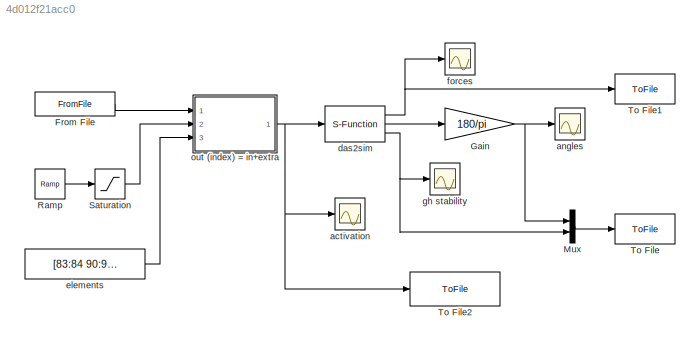
MODEL slx_4d012f21acc0
KIND model
CONFIG AbsTol = auto
CONFIG EnableMultiTasking = on
CONFIG FixedStep = Auto
CONFIG MaxStep = auto
CONFIG MinStep = auto
CONFIG RelTol = 1e-3
CONFIG SampleTimeConstraint = Unconstrained
CONFIG Solver = ode4
CONFIG SolverName = ode4
CONFIG StartTime = 0.0
CONFIG StopTime = 10
BLOCK [FromFile] From File
  FileName = initactmin.mat
  SampleTime = 0.001
BLOCK [Gain] Gain
  Gain = 180/pi
  OutDataTypeStr = Inherit: Inherit via internal rule
  ParamDataTypeStr = Inherit: Inherit via internal rule
  SaturateOnIntegerOverflow = off
BLOCK [Mux] Mux
  DisplayOption = bar
  Inputs = 2
  Ports = [2, 1]
BLOCK [Reference] Ramp  REF=simulink/Sources/Ramp
  Ports = [0, 1]
  SourceBlock = simulink/Sources/Ramp
  SourceProductBaseCode = SL
  SourceProductName = Simulink
  SourceType = Ramp
BLOCK [Saturate] Saturation
  InputPortMap = u0
  LowerLimit = 0
  Ports = [1, 1]
  UpperLimit = 1
BLOCK [ToFile] To File
  Decimation = 10
  Filename = output.mat
  MatrixName = output
  Ports = [1]
BLOCK [ToFile] To File1
  Decimation = 10
  Filename = forces.mat
  MatrixName = forces
  Ports = [1]
BLOCK [ToFile] To File2
  Decimation = 20
  Filename = activations.mat
  MatrixName = act
  Ports = [1]
BLOCK [Scope] activation
  Floating = off
  NumInputPorts = 1
  Ports = [1]
  ScopeSpecificationString = Simulink.scopes.TimeScopeBlockCfg('CurrentConfiguration', extmgr.ConfigurationSet(extmgr.Configuration('Core','General UI',true),extmgr.Configuration('Core','Source UI',true),extmgr.Configuration('Sources','WiredSimulink',true,'DataLoggingVariableName','ScopeData2','DataLoggingSaveFormat','StructureWithTime','DataLoggingDecimation','10','DataLoggingDecimateData',true,'DataLoggingLimitDataPoints',t...<+1682ch>
BLOCK [Scope] angles
  Floating = off
  NumInputPorts = 1
  Ports = [1]
  ScopeSpecificationString = Simulink.scopes.TimeScopeBlockCfg('CurrentConfiguration', extmgr.ConfigurationSet(extmgr.Configuration('Core','General UI',true),extmgr.Configuration('Core','Source UI',true),extmgr.Configuration('Sources','WiredSimulink',true,'DataLoggingSaveFormat','StructureWithTime','DataLoggingDecimation','10','DataLoggingDecimateData',true,'DataLoggingLimitDataPoints',true),extmgr.Configuration('Visuals','Ti...<+1640ch>
BLOCK [S-Function] das2sim
  EnableBusSupport = off
  FunctionName = das2sim
  Ports = [1, 3]
  SFcnIsStateOwnerBlock = off
  SFunctionDeploymentMode = off
BLOCK [Constant] elements
  Value = [83:84 90:92]
BLOCK [Scope] forces
  Floating = off
  NumInputPorts = 1
  Ports = [1]
  ScopeSpecificationString = Simulink.scopes.TimeScopeBlockCfg('CurrentConfiguration', extmgr.ConfigurationSet(extmgr.Configuration('Core','General UI',true),extmgr.Configuration('Core','Source UI',true),extmgr.Configuration('Sources','WiredSimulink',true,'DataLoggingVariableName','ScopeData3','DataLoggingSaveFormat','StructureWithTime','DataLoggingDecimation','10','DataLoggingDecimateData',true,'DataLoggingLimitDataPoints',t...<+1679ch>
BLOCK [Scope] gh stability
  Floating = off
  NumInputPorts = 1
  Ports = [1]
  ScopeSpecificationString = Simulink.scopes.TimeScopeBlockCfg('CurrentConfiguration', extmgr.ConfigurationSet(extmgr.Configuration('Core','General UI',true),extmgr.Configuration('Core','Source UI',true),extmgr.Configuration('Sources','WiredSimulink',true,'DataLoggingVariableName','ScopeData1','DataLoggingSaveFormat','StructureWithTime','DataLoggingDecimation','10','DataLoggingDecimateData',true,'DataLoggingLimitDataPoints',t...<+1697ch>
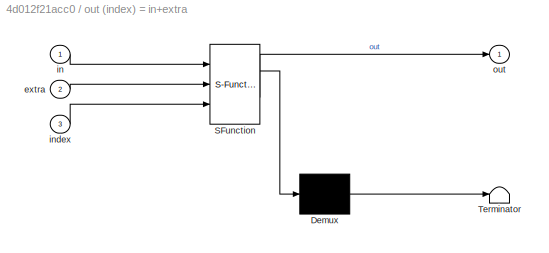
BLOCK [SubSystem] out (index) = in+extra
  ErrorFcn = Stateflow.Translate.translate
  PermitHierarchicalResolution = ExplicitOnly
  Ports = [3, 1]
  RequestExecContextInheritance = off
  SFBlockType = MATLAB Function
  TreatAsAtomicUnit = on
BLOCK [Demux] out (index) = in+extra/ Demux 
  Outputs = 1
  Ports = [1, 1]
BLOCK [S-Function] out (index) = in+extra/ SFunction 
  EnableBusSupport = on
  FunctionName = sf_sfun
  PortCounts = [3 2]
  Ports = [3, 2]
  SFcnIsStateOwnerBlock = off
  SFunctionDeploymentMode = off
  Tag = Stateflow S-Function 2
BLOCK [Terminator] out (index) = in+extra/ Terminator 
BLOCK [Inport] out (index) = in+extra/extra
  IconDisplay = Port number
  Port = 2
BLOCK [Inport] out (index) = in+extra/in
  IconDisplay = Port number
BLOCK [Inport] out (index) = in+extra/index
  IconDisplay = Port number
  Port = 3
BLOCK [Outport] out (index) = in+extra/out
  IconDisplay = Port number
LINE From File:1 -> out (index) = in+extra:1
NET Gain:1 -> Mux:1, angles:1
LINE Mux:1 -> To File:1
LINE Ramp:1 -> Saturation:1
LINE Saturation:1 -> out (index) = in+extra:2
NET das2sim:1 -> To File1:1, forces:1
LINE das2sim:2 -> Gain:1
NET das2sim:3 -> Mux:2, gh stability:1
LINE elements:1 -> out (index) = in+extra:3
NET out (index) = in+extra:1 -> To File2:1, activation:1, das2sim:1
note: NET lines group one-source signal fan-out (src -> all destinations, sorted); 1:1 wires keep LINE
CHART out (index) = in+extra states=1 transitions=1
  STATE_LABEL 'eML_blk_kernel()'
  STATE_LABEL 'SCRIPT:\nfunction out = inject(in,extra,index)\n% adds an EXTRA signal to specified elements (INDEX) of the IN vector\n\nout = in;\nfor i=index\n    out(i)=in(i)+extra;\nend'
